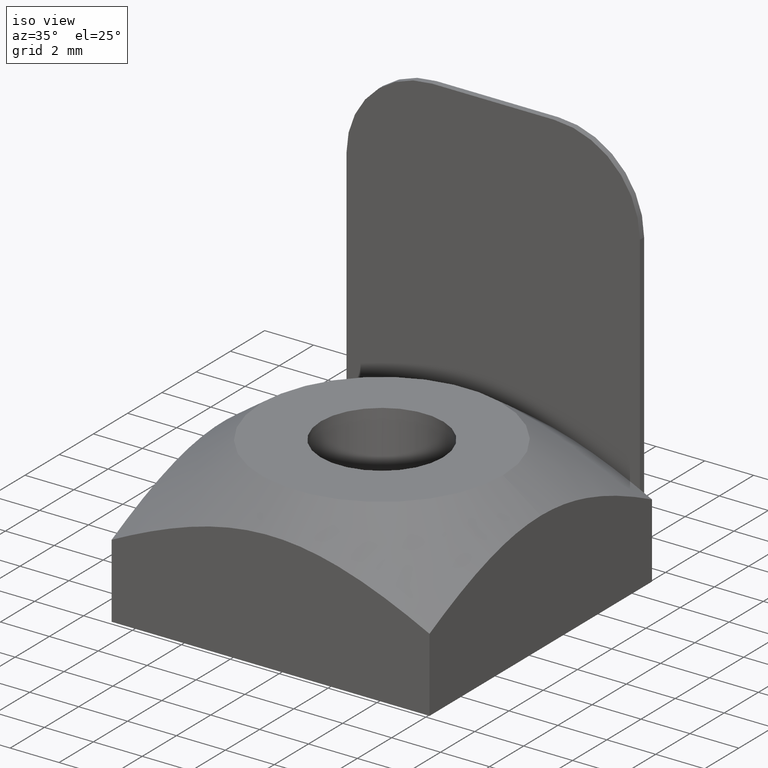
[diagram: clean part render]
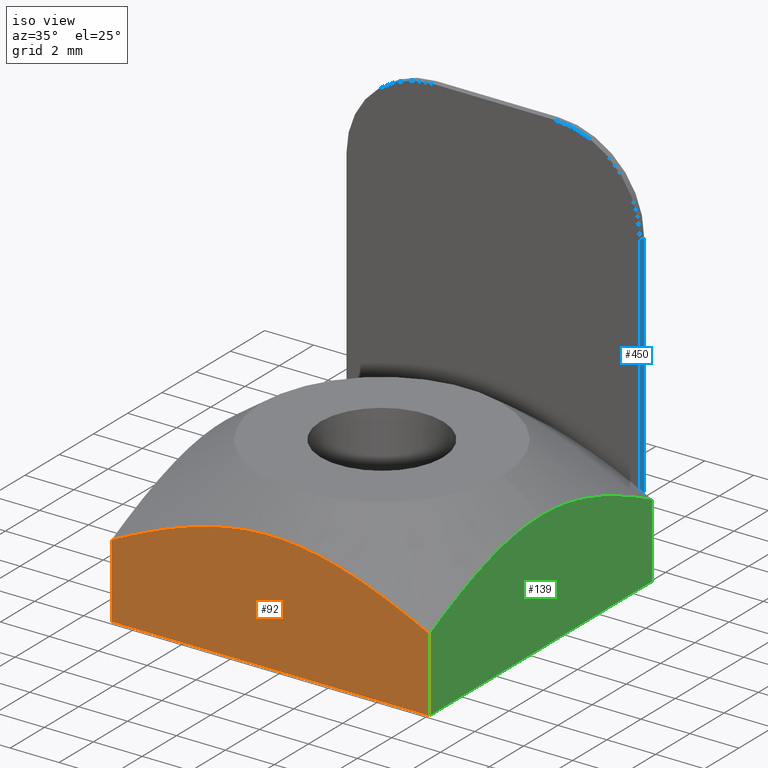
[diagram: same view with three faces highlighted in distinct colors, each labeled with its STEP entity id]
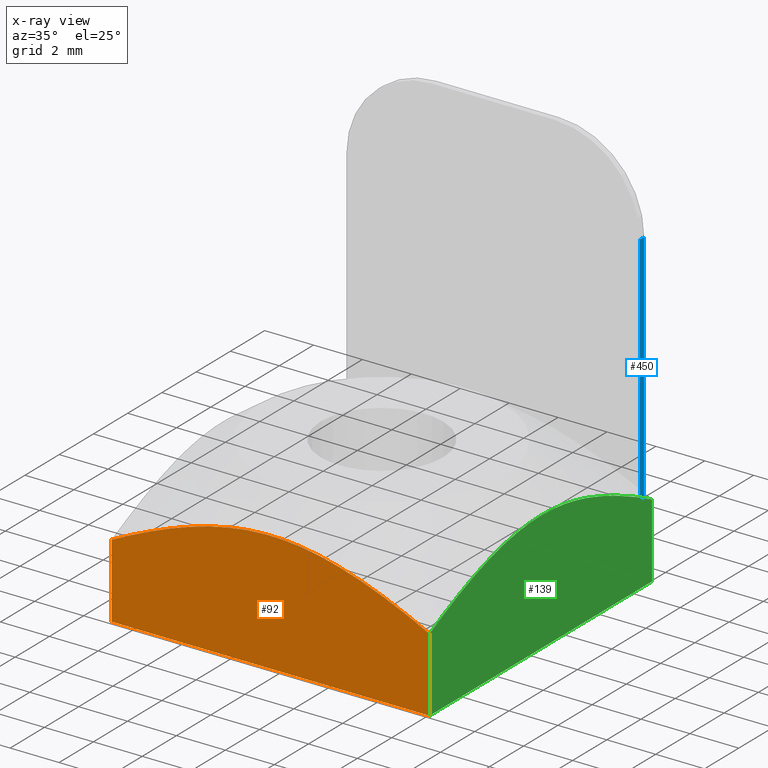
[diagram: x-ray of the same camera — body ghosted, the three highlighted faces saturated]
A machine part, iso view with three faces highlighted in distinct colors.
The next image is the same camera in x-ray (body ghosted, the three faces saturated) — at least one of them is partly hidden behind the body in this view.
Their STEP definitions:

[orange] entity #92 — the highlighted planar face has unit normal (0, 1, 0).
#9=CARTESIAN_POINT('',(-6.499999999973852,-6.499999999974079,0.0));
#10=VERTEX_POINT('',#9);
#17=CARTESIAN_POINT('',(-6.499999999973852,-6.499999999974079,3.034437679604906));
#18=VERTEX_POINT('',#17);
#19=CARTESIAN_POINT('',(-6.499999999973852,-6.499999999974079,3.034437679604906));
#20=DIRECTION('',(0.0,0.0,-1.0));
#21=VECTOR('',#20,3.034437679604906);
#22=LINE('',#19,#21);
#23=EDGE_CURVE('',#18,#10,#22,.T.);
#52=CARTESIAN_POINT('',(-6.499999999973852,-6.499999999974079,6.0));
#53=DIRECTION('',(0.0,1.0,0.0));
#54=DIRECTION('',(1.0,0.0,0.0));
#55=AXIS2_PLACEMENT_3D('',#52,#53,#54);
#56=PLANE('',#55);
#57=CARTESIAN_POINT('',(6.499999999974079,-6.499999999974079,0.0));
#58=VERTEX_POINT('',#57);
#59=CARTESIAN_POINT('',(-6.499999999973852,-6.499999999974079,0.0));
#60=DIRECTION('',(1.0,0.0,0.0));
#61=VECTOR('',#60,12.999999999947995);
#62=LINE('',#59,#61);
#63=EDGE_CURVE('',#10,#58,#62,.T.);
#64=ORIENTED_EDGE('',*,*,#63,.T.);
#65=CARTESIAN_POINT('',(6.499999999974079,-6.499999999974079,3.034437679604906));
#66=VERTEX_POINT('',#65);
#67=CARTESIAN_POINT('',(6.499999999974079,-6.499999999974079,3.034437679604906));
#68=DIRECTION('',(0.0,0.0,-1.0));
#69=VECTOR('',#68,3.034437679604906);
#70=LINE('',#67,#69);
#71=EDGE_CURVE('',#66,#58,#70,.T.);
#72=ORIENTED_EDGE('',*,*,#71,.F.);
#73=CARTESIAN_POINT('',(6.499999999974079,-6.499999999974079,3.034437679604906));
#74=CARTESIAN_POINT('',(5.963475184197932,-6.499999999974079,3.300082650377685));
#75=CARTESIAN_POINT('',(4.990047889131347,-6.499999999974534,3.753273584885145));
#76=CARTESIAN_POINT('',(3.581020279306358,-6.499999999973625,4.294954268034343));
#77=CARTESIAN_POINT('',(2.325183673444599,-6.499999999974989,4.659603356991499));
#78=CARTESIAN_POINT('',(1.114697758099510,-6.499999999973170,4.877442321284664));
#79=CARTESIAN_POINT('',(-0.091791976900140,-6.499999999974989,4.946072576401746));
#80=CARTESIAN_POINT('',(-1.288091550251238,-6.499999999977263,4.855365513273293));
#81=CARTESIAN_POINT('',(-2.551471572318178,-6.499999999962711,4.605479998874193));
#82=CARTESIAN_POINT('',(-3.827364189701029,-6.499999999977717,4.209600242582467));
#83=CARTESIAN_POINT('',(-5.174177651178525,-6.499999999973625,3.668900488673009));
#84=CARTESIAN_POINT('',(-6.048409974867354,-6.499999999974079,3.258029609546086));
#85=CARTESIAN_POINT('',(-6.499999999974079,-6.499999999974079,3.034437679604906));
#86=B_SPLINE_CURVE_WITH_KNOTS('',3,(#73,#74,#75,#76,#77,#78,#79,#80,#81,#82,#83,#84,#85),.UNSPECIFIED.,.F.,.U.,(4,1,1,1,1,1,1,1,1,1,4),(0.0,1.796348609622239,3.219266909664066,4.525760464110903,5.714993134359137,6.903296288721684,8.143598724464722,9.306388059168363,10.761381849059740,12.146239828318263,13.658133343956333),.UNSPECIFIED.);
#87=EDGE_CURVE('',#66,#18,#86,.T.);
#88=ORIENTED_EDGE('',*,*,#87,.T.);
#89=ORIENTED_EDGE('',*,*,#23,.T.);
#90=EDGE_LOOP('',(#64,#72,#88,#89));
#91=FACE_OUTER_BOUND('',#90,.T.);
#92=ADVANCED_FACE('',(#91),#56,.F.);

[blue] entity #450 — the highlighted planar face has unit normal (1, 0, 0).
#392=CARTESIAN_POINT('',(6.000000000000227,6.499999999974079,12.500000000000000));
#393=VERTEX_POINT('',#392);
#401=CARTESIAN_POINT('',(6.000000000000227,6.749999999974079,12.500000000000000));
#402=VERTEX_POINT('',#401);
#403=CARTESIAN_POINT('',(6.000000000000227,6.499999999974079,12.500000000000000));
#404=DIRECTION('',(0.0,1.0,0.0));
#405=VECTOR('',#404,0.250000000000000);
#406=LINE('',#403,#405);
#407=EDGE_CURVE('',#393,#402,#406,.T.);
#420=CARTESIAN_POINT('',(6.000000000000227,6.499999999974079,12.500000000000000));
#421=DIRECTION('',(1.0,0.0,0.0));
#422=DIRECTION('',(0.0,0.0,-1.0));
#423=AXIS2_PLACEMENT_3D('',#420,#421,#422);
#424=PLANE('',#423);
#425=CARTESIAN_POINT('',(6.000000000000227,6.499999999974079,1.776357E-015));
#426=VERTEX_POINT('',#425);
#427=CARTESIAN_POINT('',(6.000000000000227,6.499999999974079,12.500000000000000));
#428=DIRECTION('',(0.0,0.0,-1.0));
#429=VECTOR('',#428,12.499999999999998);
#430=LINE('',#427,#429);
#431=EDGE_CURVE('',#393,#426,#430,.T.);
#432=ORIENTED_EDGE('',*,*,#431,.T.);
#433=CARTESIAN_POINT('',(6.000000000000227,6.749999999974079,1.776357E-015));
#434=VERTEX_POINT('',#433);
#435=CARTESIAN_POINT('',(6.000000000000227,6.499999999974079,1.776357E-015));
#436=DIRECTION('',(0.0,1.0,0.0));
#437=VECTOR('',#436,0.250000000000000);
#438=LINE('',#435,#437);
#439=EDGE_CURVE('',#426,#434,#438,.T.);
#440=ORIENTED_EDGE('',*,*,#439,.T.);
#441=CARTESIAN_POINT('',(6.000000000000227,6.749999999974079,12.500000000000000));
#442=DIRECTION('',(0.0,0.0,-1.0));
#443=VECTOR('',#442,12.499999999999998);
#444=LINE('',#441,#443);
#445=EDGE_CURVE('',#402,#434,#444,.T.);
#446=ORIENTED_EDGE('',*,*,#445,.F.);
#447=ORIENTED_EDGE('',*,*,#407,.F.);
#448=EDGE_LOOP('',(#432,#440,#446,#447));
#449=FACE_OUTER_BOUND('',#448,.T.);
#450=ADVANCED_FACE('',(#449),#424,.T.);

[green] entity #139 — the highlighted planar face has unit normal (-1, 0, 0).
#57=CARTESIAN_POINT('',(6.499999999974079,-6.499999999974079,0.0));
#58=VERTEX_POINT('',#57);
#65=CARTESIAN_POINT('',(6.499999999974079,-6.499999999974079,3.034437679604906));
#66=VERTEX_POINT('',#65);
#67=CARTESIAN_POINT('',(6.499999999974079,-6.499999999974079,3.034437679604906));
#68=DIRECTION('',(0.0,0.0,-1.0));
#69=VECTOR('',#68,3.034437679604906);
#70=LINE('',#67,#69);
#71=EDGE_CURVE('',#66,#58,#70,.T.);
#93=CARTESIAN_POINT('',(6.499999999974079,-6.499999999974079,6.0));
#94=DIRECTION('',(-1.0,0.0,0.0));
#95=DIRECTION('',(0.0,1.0,0.0));
#96=AXIS2_PLACEMENT_3D('',#93,#94,#95);
#97=PLANE('',#96);
#98=CARTESIAN_POINT('',(6.499999999974079,6.499999999974079,0.0));
#99=VERTEX_POINT('',#98);
#100=CARTESIAN_POINT('',(6.499999999974079,-6.499999999973916,0.0));
#101=DIRECTION('',(0.0,1.0,0.0));
#102=VECTOR('',#101,12.999999999947995);
#103=LINE('',#100,#102);
#104=EDGE_CURVE('',#58,#99,#103,.T.);
#105=ORIENTED_EDGE('',*,*,#104,.T.);
#106=CARTESIAN_POINT('',(6.499999999974079,6.499999999974079,3.034437679604906));
#107=VERTEX_POINT('',#106);
#108=CARTESIAN_POINT('',(6.499999999974079,6.499999999974079,3.034437679604906));
#109=DIRECTION('',(0.0,0.0,-1.0));
#110=VECTOR('',#109,3.034437679604906);
#111=LINE('',#108,#110);
#112=EDGE_CURVE('',#107,#99,#111,.T.);
#113=ORIENTED_EDGE('',*,*,#112,.F.);
#114=CARTESIAN_POINT('',(6.499999999974079,0.0,4.919668161812596));
#115=VERTEX_POINT('',#114);
#116=CARTESIAN_POINT('',(6.499999999974079,6.499999999974079,3.034437679604906));
#117=CARTESIAN_POINT('',(6.499999999974079,5.882877524653850,3.339988284347234));
#118=CARTESIAN_POINT('',(6.499999999974534,4.809413192198008,3.835425012968807));
#119=CARTESIAN_POINT('',(6.499999999973852,3.186651324770082,4.430488239795752));
#120=CARTESIAN_POINT('',(6.499999999974989,1.644250270507200,4.819853950623344));
#121=CARTESIAN_POINT('',(6.499999999974079,0.548660503574865,4.919668161812595));
#122=CARTESIAN_POINT('',(6.499999999974079,0.0,4.919668161812595));
#123=B_SPLINE_CURVE_WITH_KNOTS('',3,(#116,#117,#118,#119,#120,#121,#122),.UNSPECIFIED.,.F.,.U.,(4,1,1,1,4),(0.0,2.066340973610342,3.543609594805800,5.181100455068718,6.829066620924860),.UNSPECIFIED.);
#124=EDGE_CURVE('',#107,#115,#123,.T.);
#125=ORIENTED_EDGE('',*,*,#124,.T.);
#126=CARTESIAN_POINT('',(6.499999999974079,0.0,4.919668161812595));
#127=CARTESIAN_POINT('',(6.499999999974079,-0.548660503574865,4.919668161812595));
#128=CARTESIAN_POINT('',(6.499999999974762,-1.644250270504926,4.819853950623344));
#129=CARTESIAN_POINT('',(6.499999999973852,-3.186651324770082,4.430488239795752));
#130=CARTESIAN_POINT('',(6.499999999974534,-4.809413192196644,3.835425012968807));
#131=CARTESIAN_POINT('',(6.499999999974079,-5.882877524653850,3.339988284347234));
#132=CARTESIAN_POINT('',(6.499999999974079,-6.499999999974079,3.034437679604906));
#133=B_SPLINE_CURVE_WITH_KNOTS('',3,(#126,#127,#128,#129,#130,#131,#132),.UNSPECIFIED.,.F.,.U.,(4,1,1,1,4),(0.0,1.647966165856141,3.285457026119058,4.762725647314515,6.829066620924857),.UNSPECIFIED.);
#134=EDGE_CURVE('',#115,#66,#133,.T.);
#135=ORIENTED_EDGE('',*,*,#134,.T.);
#136=ORIENTED_EDGE('',*,*,#71,.T.);
#137=EDGE_LOOP('',(#105,#113,#125,#135,#136));
#138=FACE_OUTER_BOUND('',#137,.T.);
#139=ADVANCED_FACE('',(#138),#97,.F.);